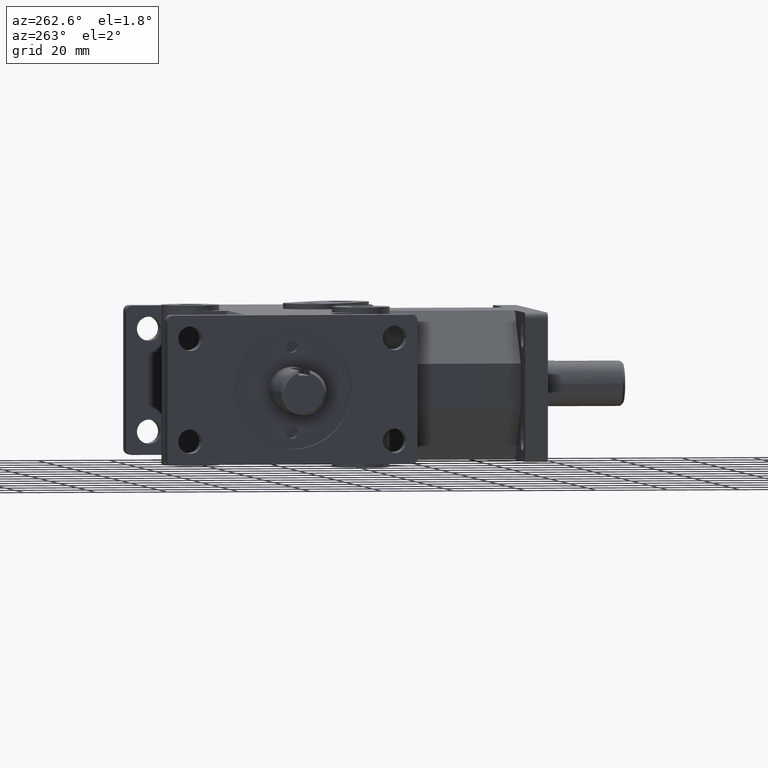
[diagram: clean part render]
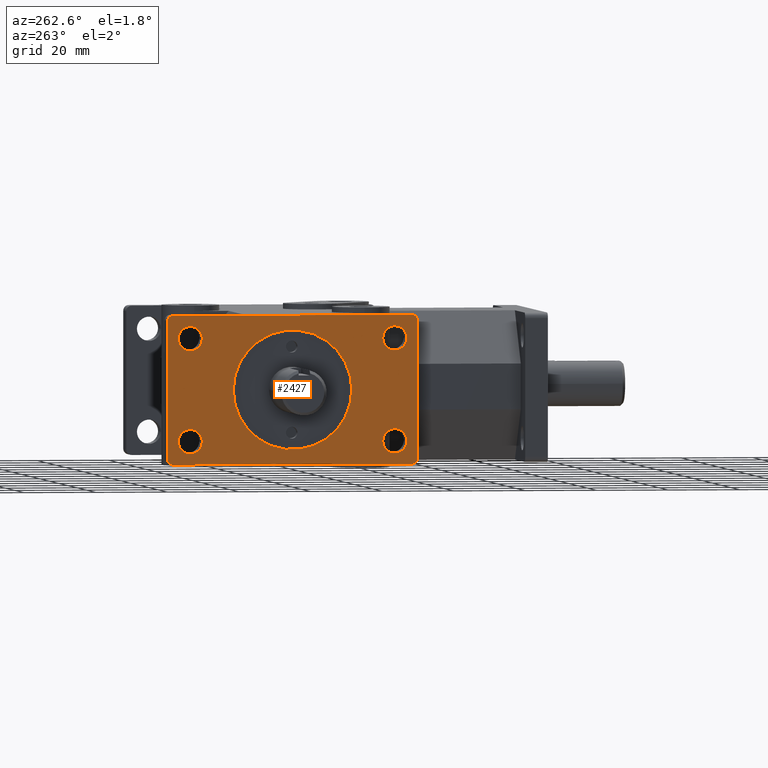
[diagram: same view with one face highlighted and labeled with its STEP entity id]
A machine part, auxiliary view. The second image highlights one B-rep face of the part: STEP entity #2427.
In plain terms, the highlighted planar face has unit normal (-1, 0, 0).
Its self-contained STEP definition (entity closure, byte-faithful):
#43=FACE_BOUND('',#423,.T.);
#44=FACE_BOUND('',#424,.T.);
#45=FACE_BOUND('',#425,.T.);
#46=FACE_BOUND('',#426,.T.);
#47=FACE_BOUND('',#427,.T.);
#134=CIRCLE('',#2589,0.652);
#151=CIRCLE('',#2616,0.06);
#153=CIRCLE('',#2619,0.06);
#155=CIRCLE('',#2622,0.06);
#157=CIRCLE('',#2625,0.06);
#175=CIRCLE('',#2651,0.1325);
#176=CIRCLE('',#2652,0.1325);
#177=CIRCLE('',#2653,0.1325);
#178=CIRCLE('',#2654,0.1325);
#269=FACE_OUTER_BOUND('',#422,.T.);
#422=EDGE_LOOP('',(#1858,#1859,#1860,#1861,#1862,#1863,#1864,#1865));
#423=EDGE_LOOP('',(#1866));
#424=EDGE_LOOP('',(#1867));
#425=EDGE_LOOP('',(#1868));
#426=EDGE_LOOP('',(#1869));
#427=EDGE_LOOP('',(#1870));
#561=LINE('',#3555,#789);
#601=LINE('',#3653,#829);
#670=LINE('',#3920,#898);
#671=LINE('',#3921,#899);
#789=VECTOR('',#2805,1.);
#829=VECTOR('',#2871,1.);
#898=VECTOR('',#3156,1.);
#899=VECTOR('',#3157,1.);
#1018=VERTEX_POINT('',#3552);
#1019=VERTEX_POINT('',#3554);
#1063=VERTEX_POINT('',#3650);
#1064=VERTEX_POINT('',#3652);
#1114=VERTEX_POINT('',#3796);
#1131=VERTEX_POINT('',#3847);
#1133=VERTEX_POINT('',#3853);
#1135=VERTEX_POINT('',#3859);
#1137=VERTEX_POINT('',#3865);
#1155=VERTEX_POINT('',#3922);
#1156=VERTEX_POINT('',#3924);
#1157=VERTEX_POINT('',#3926);
#1158=VERTEX_POINT('',#3928);
#1252=EDGE_CURVE('',#1019,#1018,#561,.T.);
#1301=EDGE_CURVE('',#1064,#1063,#601,.T.);
#1371=EDGE_CURVE('',#1114,#1114,#134,.T.);
#1395=EDGE_CURVE('',#1064,#1131,#151,.T.);
#1398=EDGE_CURVE('',#1133,#1063,#153,.T.);
#1401=EDGE_CURVE('',#1019,#1135,#155,.T.);
#1404=EDGE_CURVE('',#1137,#1018,#157,.T.);
#1433=EDGE_CURVE('',#1135,#1133,#670,.T.);
#1434=EDGE_CURVE('',#1137,#1131,#671,.T.);
#1435=EDGE_CURVE('',#1155,#1155,#175,.T.);
#1436=EDGE_CURVE('',#1156,#1156,#176,.T.);
#1437=EDGE_CURVE('',#1157,#1157,#177,.T.);
#1438=EDGE_CURVE('',#1158,#1158,#178,.T.);
#1858=ORIENTED_EDGE('',*,*,#1395,.F.);
#1859=ORIENTED_EDGE('',*,*,#1301,.T.);
#1860=ORIENTED_EDGE('',*,*,#1398,.F.);
#1861=ORIENTED_EDGE('',*,*,#1433,.F.);
#1862=ORIENTED_EDGE('',*,*,#1401,.F.);
#1863=ORIENTED_EDGE('',*,*,#1252,.T.);
#1864=ORIENTED_EDGE('',*,*,#1404,.F.);
#1865=ORIENTED_EDGE('',*,*,#1434,.T.);
#1866=ORIENTED_EDGE('',*,*,#1371,.T.);
#1867=ORIENTED_EDGE('',*,*,#1435,.T.);
#1868=ORIENTED_EDGE('',*,*,#1436,.T.);
#1869=ORIENTED_EDGE('',*,*,#1437,.T.);
#1870=ORIENTED_EDGE('',*,*,#1438,.T.);
#2319=PLANE('',#2650);
#2427=ADVANCED_FACE('',(#269,#43,#44,#45,#46,#47),#2319,.T.);
#2589=AXIS2_PLACEMENT_3D('',#3797,#3011,#3012);
#2616=AXIS2_PLACEMENT_3D('',#3848,#3072,#3073);
#2619=AXIS2_PLACEMENT_3D('',#3854,#3079,#3080);
#2622=AXIS2_PLACEMENT_3D('',#3860,#3086,#3087);
#2625=AXIS2_PLACEMENT_3D('',#3866,#3093,#3094);
#2650=AXIS2_PLACEMENT_3D('',#3919,#3154,#3155);
#2651=AXIS2_PLACEMENT_3D('',#3923,#3158,#3159);
#2652=AXIS2_PLACEMENT_3D('',#3925,#3160,#3161);
#2653=AXIS2_PLACEMENT_3D('',#3927,#3162,#3163);
#2654=AXIS2_PLACEMENT_3D('',#3929,#3164,#3165);
#2805=DIRECTION('',(0.,1.,0.));
#2871=DIRECTION('',(0.,-1.,0.));
#3011=DIRECTION('center_axis',(1.,0.,0.));
#3012=DIRECTION('ref_axis',(0.,1.,0.));
#3072=DIRECTION('center_axis',(1.,0.,0.));
#3073=DIRECTION('ref_axis',(0.,0.70710678118654,-0.707106781186555));
#3079=DIRECTION('center_axis',(1.,0.,0.));
#3080=DIRECTION('ref_axis',(0.,-0.707106781186548,-0.707106781186548));
#3086=DIRECTION('center_axis',(1.,0.,0.));
#3087=DIRECTION('ref_axis',(0.,-0.707106781186548,0.707106781186548));
#3093=DIRECTION('center_axis',(1.,0.,0.));
#3094=DIRECTION('ref_axis',(0.,0.70710678118654,0.707106781186555));
#3154=DIRECTION('center_axis',(-1.,0.,0.));
#3155=DIRECTION('ref_axis',(0.,1.,0.));
#3156=DIRECTION('',(0.,0.,-1.));
#3157=DIRECTION('',(0.,0.,-1.));
#3158=DIRECTION('center_axis',(1.,0.,0.));
#3159=DIRECTION('ref_axis',(0.,1.,0.));
#3160=DIRECTION('center_axis',(1.,0.,0.));
#3161=DIRECTION('ref_axis',(0.,1.,0.));
#3162=DIRECTION('center_axis',(1.,0.,0.));
#3163=DIRECTION('ref_axis',(0.,1.,0.));
#3164=DIRECTION('center_axis',(1.,0.,0.));
#3165=DIRECTION('ref_axis',(0.,1.,0.));
#3552=CARTESIAN_POINT('',(-1.875,4.19,0.815));
#3554=CARTESIAN_POINT('',(-1.875,1.56,0.815));
#3555=CARTESIAN_POINT('',(-1.875,4.25,0.815));
#3650=CARTESIAN_POINT('',(-1.875,1.56,-0.815));
#3652=CARTESIAN_POINT('',(-1.875,4.19,-0.815));
#3653=CARTESIAN_POINT('',(-1.875,4.25,-0.815));
#3796=CARTESIAN_POINT('',(-1.875,2.223,-7.98469713044074E-17));
#3797=CARTESIAN_POINT('Origin',(-1.875,2.875,0.));
#3847=CARTESIAN_POINT('',(-1.875,4.25,-0.755));
#3848=CARTESIAN_POINT('Origin',(-1.875,4.19,-0.755));
#3853=CARTESIAN_POINT('',(-1.875,1.5,-0.755));
#3854=CARTESIAN_POINT('Origin',(-1.875,1.56,-0.755));
#3859=CARTESIAN_POINT('',(-1.875,1.5,0.755));
#3860=CARTESIAN_POINT('Origin',(-1.875,1.56,0.755));
#3865=CARTESIAN_POINT('',(-1.875,4.25,0.755));
#3866=CARTESIAN_POINT('Origin',(-1.875,4.19,0.755));
#3919=CARTESIAN_POINT('Origin',(-1.875,4.25,0.));
#3920=CARTESIAN_POINT('',(-1.875,1.5,0.));
#3921=CARTESIAN_POINT('',(-1.875,4.25,0.));
#3922=CARTESIAN_POINT('',(-1.875,1.6175,-0.562));
#3923=CARTESIAN_POINT('Origin',(-1.875,1.75,-0.562));
#3924=CARTESIAN_POINT('',(-1.875,3.8675,-0.562));
#3925=CARTESIAN_POINT('Origin',(-1.875,4.,-0.562));
#3926=CARTESIAN_POINT('',(-1.875,3.8675,0.562));
#3927=CARTESIAN_POINT('Origin',(-1.875,4.,0.562));
#3928=CARTESIAN_POINT('',(-1.875,1.6175,0.562));
#3929=CARTESIAN_POINT('Origin',(-1.875,1.75,0.562));